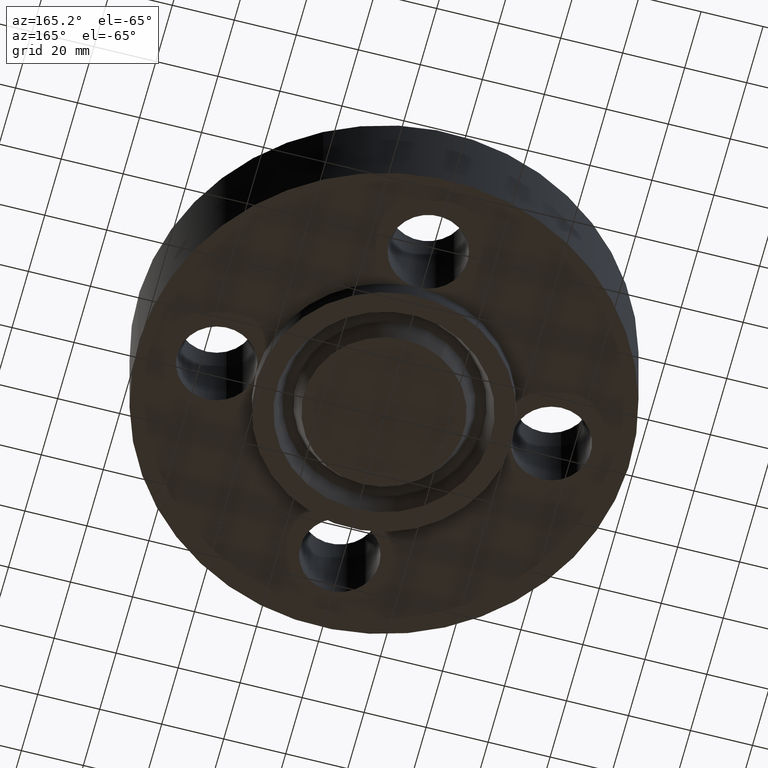
[diagram: clean part render]
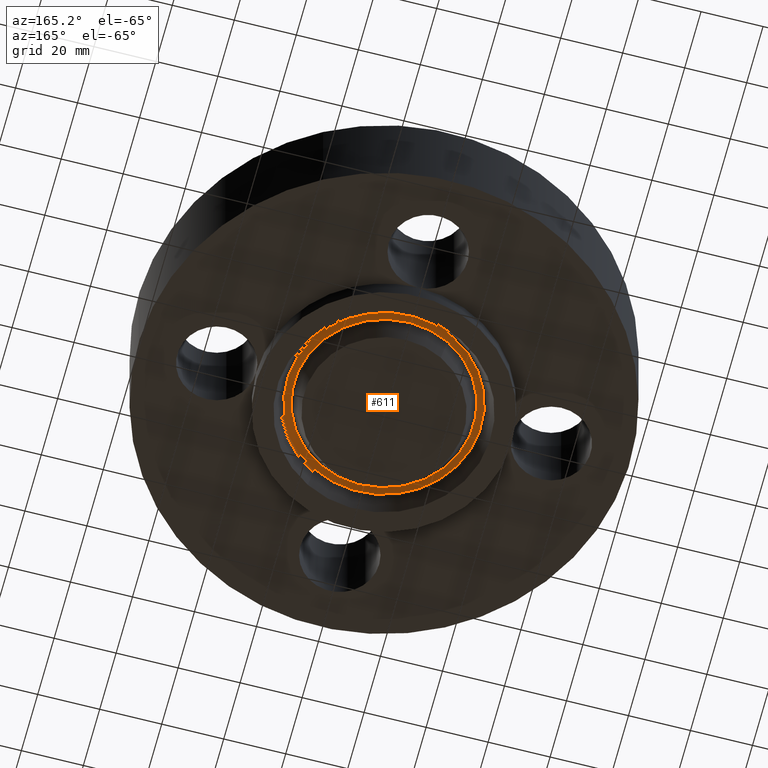
[diagram: same view with one face highlighted and labeled with its STEP entity id]
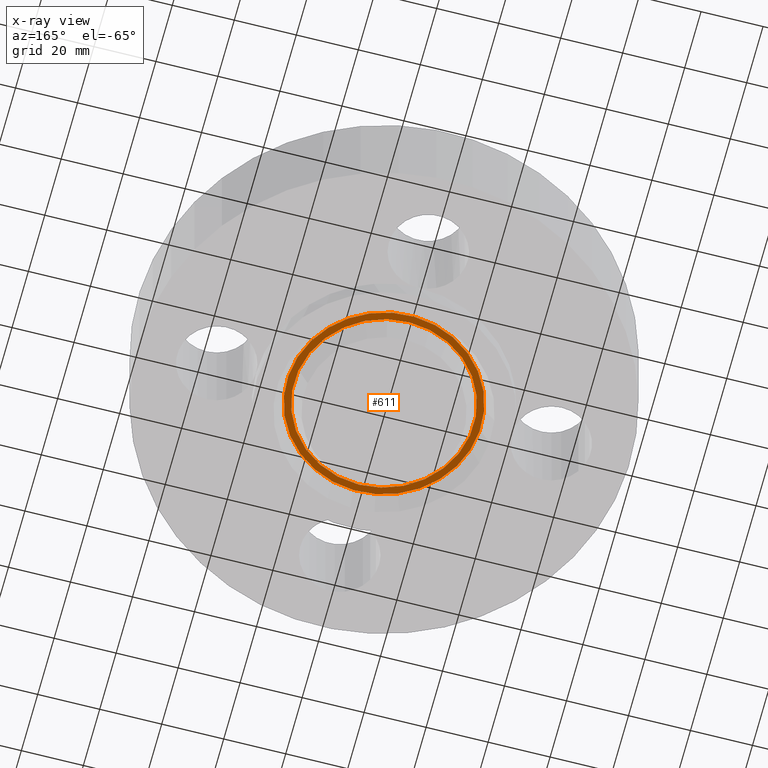
[diagram: x-ray of the same camera — body ghosted, the highlighted face saturated]
A machine part, auxiliary view. The second image highlights one B-rep face of the part: STEP entity #611.
The next image is the same camera in x-ray: the body ghosted, the highlighted face saturated — about 0% of this face is hidden behind the body in this view.
In plain terms, the highlighted planar face has unit normal (0, 0, -1).
Its self-contained STEP definition (entity closure, byte-faithful):
#294=AXIS2_PLACEMENT_3D('Plane Axis2P3D',#291,#292,#293) ;
#533=AXIS2_PLACEMENT_3D('Circle Axis2P3D',#531,#532,$) ;
#579=AXIS2_PLACEMENT_3D('Circle Axis2P3D',#577,#578,$) ;
#595=AXIS2_PLACEMENT_3D('Circle Axis2P3D',#593,#594,$) ;
#604=AXIS2_PLACEMENT_3D('Circle Axis2P3D',#602,#603,$) ;
#291=CARTESIAN_POINT('Axis2P3D Location',(0.,1.62500000001,0.)) ;
#528=CARTESIAN_POINT('Vertex',(-0.591065932797,1.08193893271,-3.93386111088E-017)) ;
#531=CARTESIAN_POINT('Axis2P3D Location',(0.,0.,-3.93386111088E-017)) ;
#535=CARTESIAN_POINT('Vertex',(0.591065932797,-1.08193893271,-3.93386111088E-017)) ;
#577=CARTESIAN_POINT('Axis2P3D Location',(0.,0.,-3.93386111088E-017)) ;
#593=CARTESIAN_POINT('Axis2P3D Location',(0.,0.,0.)) ;
#597=CARTESIAN_POINT('Vertex',(0.547569721393,-1.00231965179,5.24514814784E-017)) ;
#599=CARTESIAN_POINT('Vertex',(-0.547569721393,1.00231965179,5.24514814784E-017)) ;
#602=CARTESIAN_POINT('Axis2P3D Location',(0.,0.,0.)) ;
#292=DIRECTION('Axis2P3D Direction',(0.,0.,-0.0393700787402)) ;
#293=DIRECTION('Axis2P3D XDirection',(0.0393700787402,0.,0.)) ;
#532=DIRECTION('Axis2P3D Direction',(0.,0.,0.0393700787402)) ;
#578=DIRECTION('Axis2P3D Direction',(0.,0.,0.0393700787402)) ;
#594=DIRECTION('Axis2P3D Direction',(0.,0.,-0.0393700787402)) ;
#603=DIRECTION('Axis2P3D Direction',(0.,0.,-0.0393700787402)) ;
#590=ORIENTED_EDGE('',*,*,#537,.F.) ;
#591=ORIENTED_EDGE('',*,*,#581,.F.) ;
#608=ORIENTED_EDGE('',*,*,#601,.T.) ;
#609=ORIENTED_EDGE('',*,*,#606,.T.) ;
#610=FACE_BOUND('',#607,.T.) ;
#611=ADVANCED_FACE('PartBody',(#592,#610),#295,.T.) ;
#534=CIRCLE('generated circle',#533,1.23286284356) ;
#580=CIRCLE('generated circle',#579,1.23286284356) ;
#596=CIRCLE('generated circle',#595,1.14213715645) ;
#605=CIRCLE('generated circle',#604,1.14213715645) ;
#537=EDGE_CURVE('',#529,#536,#534,.T.) ;
#581=EDGE_CURVE('',#536,#529,#580,.T.) ;
#601=EDGE_CURVE('',#598,#600,#596,.F.) ;
#606=EDGE_CURVE('',#600,#598,#605,.F.) ;
#589=EDGE_LOOP('',(#590,#591)) ;
#607=EDGE_LOOP('',(#608,#609)) ;
#592=FACE_OUTER_BOUND('',#589,.T.) ;
#295=PLANE('',#294) ;
#529=VERTEX_POINT('',#528) ;
#536=VERTEX_POINT('',#535) ;
#598=VERTEX_POINT('',#597) ;
#600=VERTEX_POINT('',#599) ;